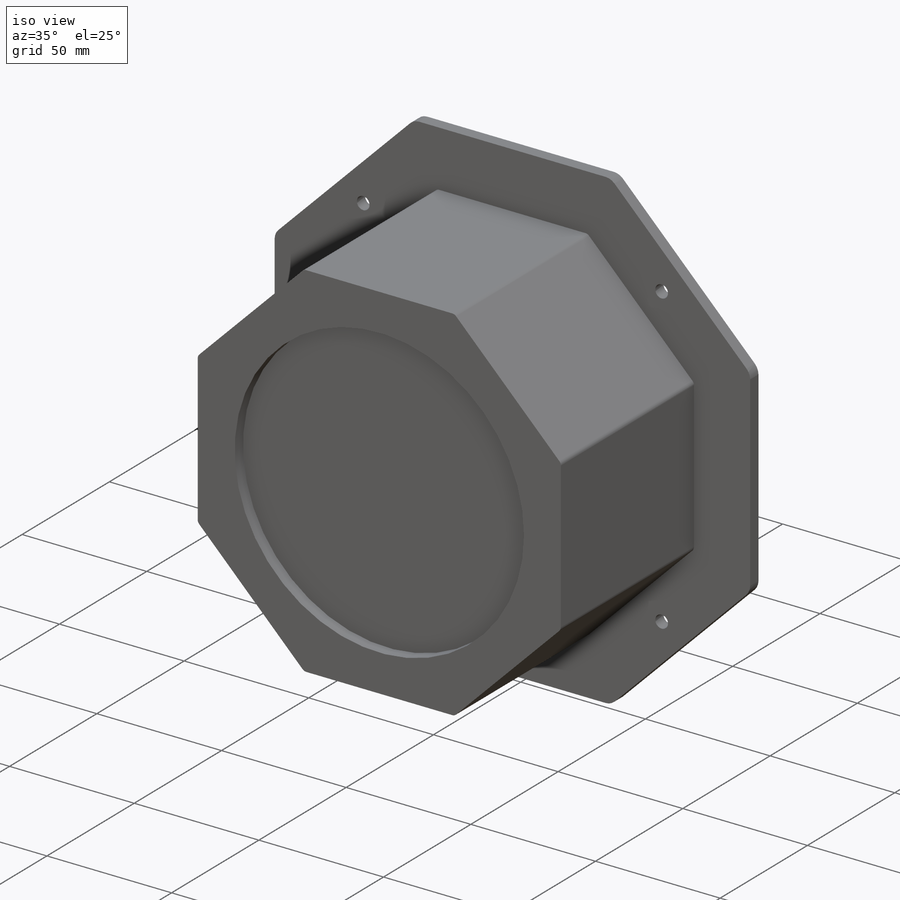
[diagram: iso view]
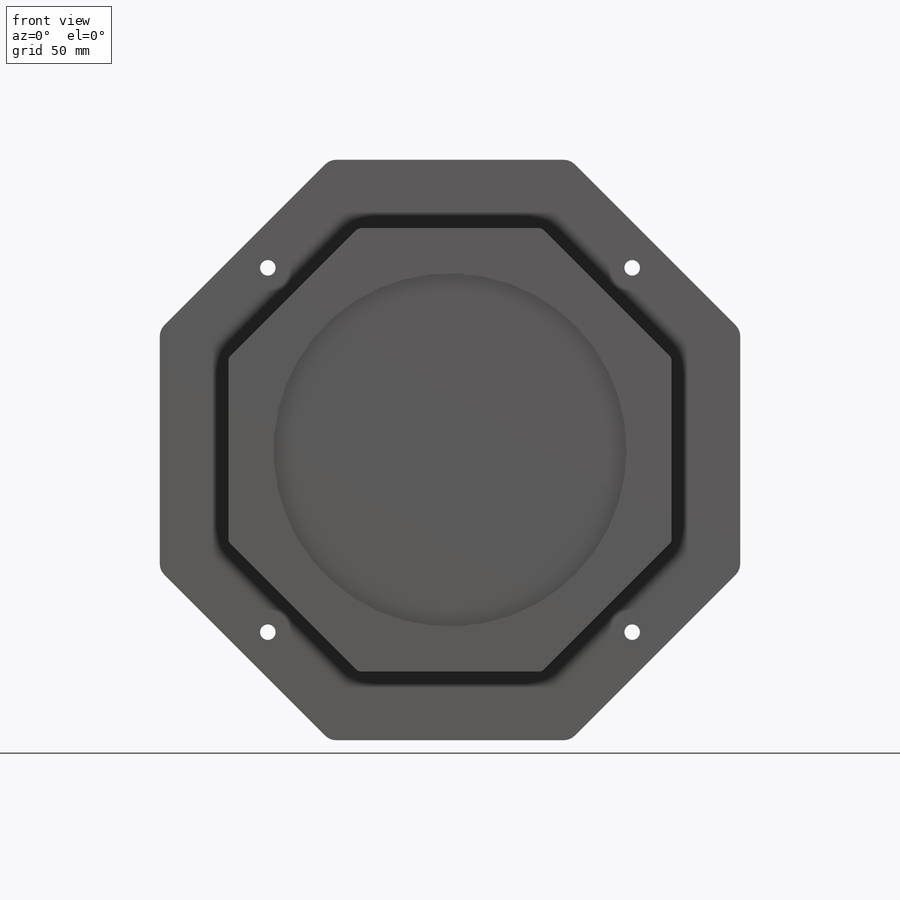
[diagram: front view]
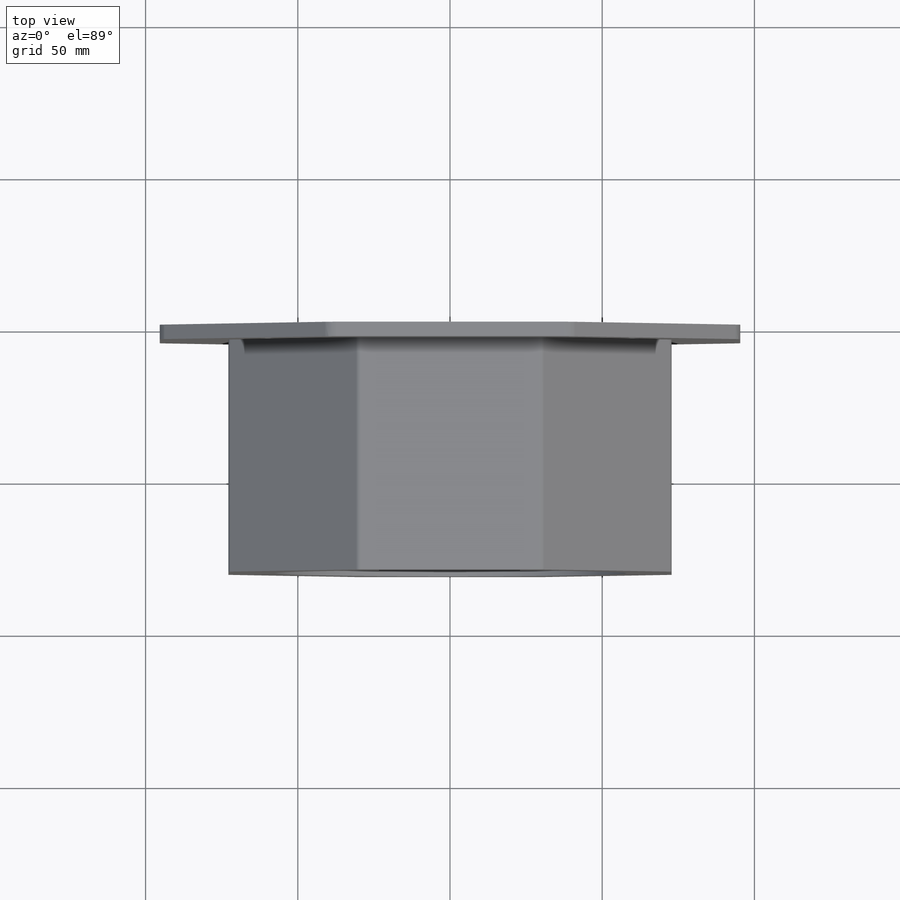
[diagram: top view]
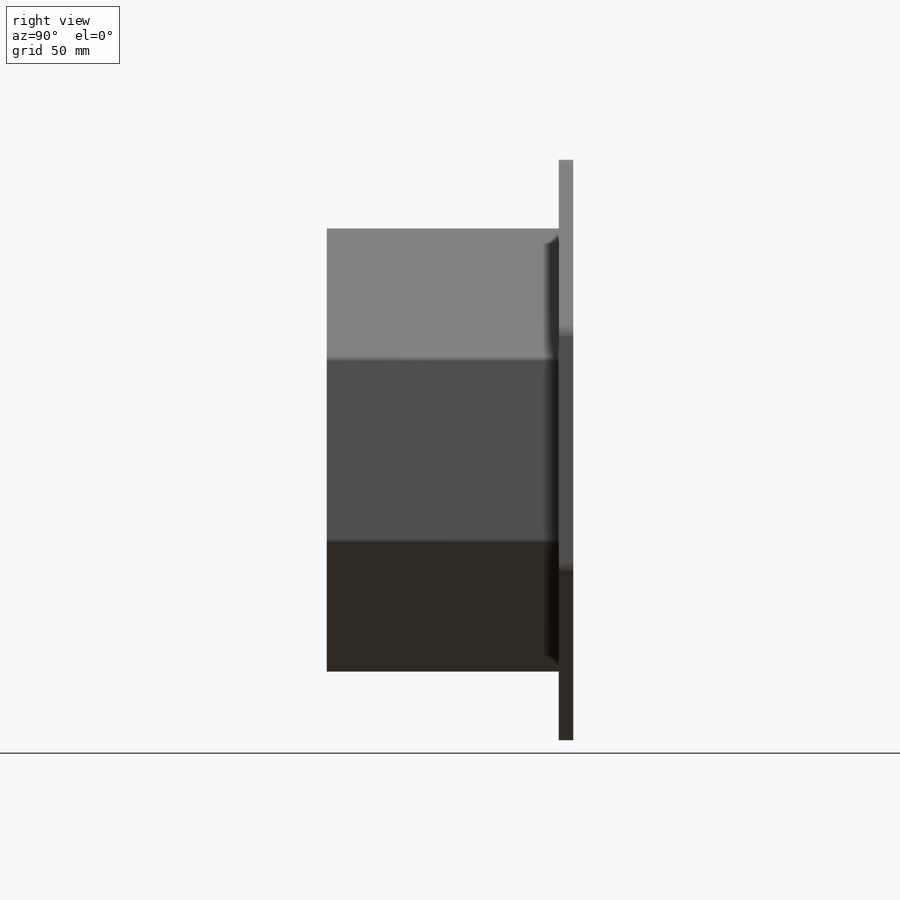
[diagram: right view]
SOLIDWORKS PART (.sldprt)
format: sldprt  version: not decoded by parser v0  size: 259,072 bytes
history: native  units: mm
features: sketch x6, extrude x2, hole x2, fillet x2, material x1, plane x1, shell x1 (+12 scaffold rows collapsed)
feature tree (27):
  scaffold x12  (default folders/planes/origin — collapsed)
  material  "Material <not specified>"
  plane  "Plane1"  Offset=4.7625mm
  sketch  "Sketch1"
  extrude  "Boss-Extrude1"  Depth=4.7625mm
  sketch  "Sketch2"
  extrude  "Boss-Extrude2"  Depth=76.2375mm
  hole  "Ø5.1 (5.1) Diameter Hole1"  Diameter=5.1mm Depth=81mm
  sketch  "Sketch4"
  sketch  "Sketch3"  dims[hole-wizard template sketch: 59 standard entries collapsed; hole parameters kept: c18.Thru Hole Dia.=5.1mm c18.Thru Hole Depth=81.0mm]
  hole  "Hole1"  Diameter=116mm Depth=4.7625mm
  sketch  "Sketch6"
  sketch  "Sketch5"  dims[Diameter=116.0mm Depth=4.7625mm]
  fillet  "Fillet1"  Radius=2mm
  fillet  "Fillet2"  Radius=5mm
  shell  "Shell1"  Thickness=5.08mm
decode coverage: 9 of 13 modeling features carry decoded parameters
note: ~ marks probable driven/reference dimensions
note: suppression state not decoded; provenance and decode notes live in map.json
